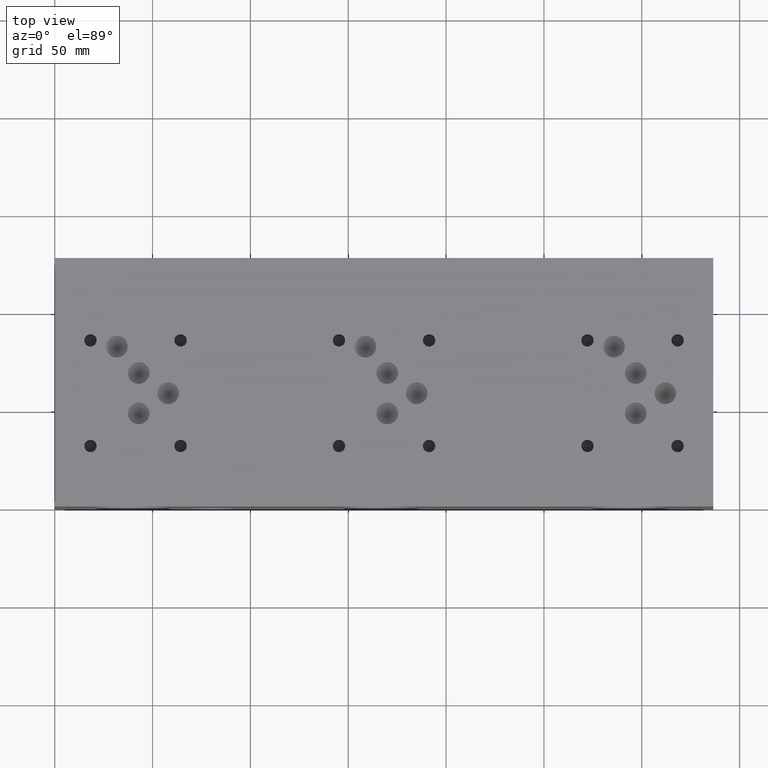
[diagram: clean part render]
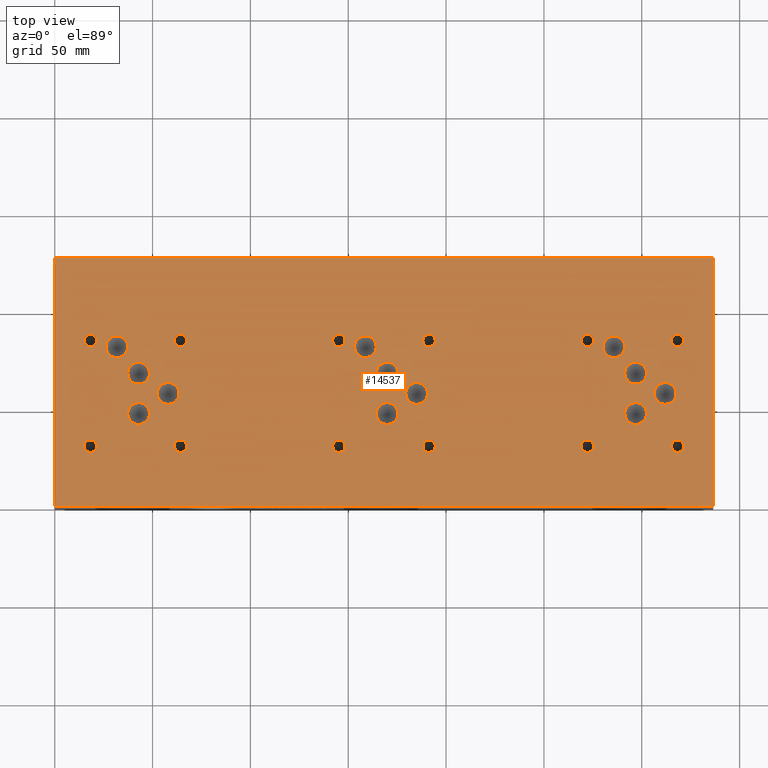
[diagram: same view with one face highlighted and labeled with its STEP entity id]
A machine part, top view. The second image highlights one B-rep face of the part: STEP entity #14537.
In plain terms, the highlighted planar face has unit normal (0, 0, 1).
Its self-contained STEP definition (entity closure, byte-faithful):
#609=CIRCLE('',#15291,5.55625);
#610=CIRCLE('',#15292,5.55625);
#613=CIRCLE('',#15297,5.55625);
#614=CIRCLE('',#15298,5.55625);
#617=CIRCLE('',#15303,5.5626);
#618=CIRCLE('',#15304,5.5626);
#621=CIRCLE('',#15309,5.5626);
#622=CIRCLE('',#15310,5.5626);
#625=CIRCLE('',#15315,5.5626);
#626=CIRCLE('',#15316,5.5626);
#629=CIRCLE('',#15321,5.5626);
#630=CIRCLE('',#15322,5.5626);
#633=CIRCLE('',#15327,5.5626);
#634=CIRCLE('',#15328,5.5626);
#637=CIRCLE('',#15333,5.5626);
#638=CIRCLE('',#15334,5.5626);
#641=CIRCLE('',#15339,5.5626);
#642=CIRCLE('',#15340,5.5626);
#645=CIRCLE('',#15345,5.5626);
#646=CIRCLE('',#15346,5.5626);
#649=CIRCLE('',#15351,5.5626);
#650=CIRCLE('',#15352,5.5626);
#653=CIRCLE('',#15357,5.5626);
#654=CIRCLE('',#15358,5.5626);
#660=CIRCLE('',#15367,3.175);
#661=CIRCLE('',#15368,3.175);
#667=CIRCLE('',#15378,3.175);
#668=CIRCLE('',#15379,3.175);
#674=CIRCLE('',#15389,3.175);
#675=CIRCLE('',#15390,3.175);
#681=CIRCLE('',#15400,3.175);
#682=CIRCLE('',#15401,3.175);
#688=CIRCLE('',#15411,3.175);
#689=CIRCLE('',#15412,3.175);
#695=CIRCLE('',#15422,3.175);
#696=CIRCLE('',#15423,3.175);
#702=CIRCLE('',#15433,3.175);
#703=CIRCLE('',#15434,3.175);
#709=CIRCLE('',#15444,3.175);
#710=CIRCLE('',#15445,3.175);
#716=CIRCLE('',#15455,3.175);
#717=CIRCLE('',#15456,3.175);
#723=CIRCLE('',#15466,3.175);
#724=CIRCLE('',#15467,3.175);
#730=CIRCLE('',#15477,3.175);
#731=CIRCLE('',#15478,3.175);
#737=CIRCLE('',#15488,3.175);
#738=CIRCLE('',#15489,3.175);
#1204=FACE_BOUND('',#2834,.T.);
#1205=FACE_BOUND('',#2835,.T.);
#1206=FACE_BOUND('',#2836,.T.);
#1207=FACE_BOUND('',#2837,.T.);
#1208=FACE_BOUND('',#2838,.T.);
#1209=FACE_BOUND('',#2839,.T.);
#1210=FACE_BOUND('',#2840,.T.);
#1211=FACE_BOUND('',#2841,.T.);
#1212=FACE_BOUND('',#2842,.T.);
#1213=FACE_BOUND('',#2843,.T.);
#1214=FACE_BOUND('',#2844,.T.);
#1215=FACE_BOUND('',#2845,.T.);
#1216=FACE_BOUND('',#2846,.T.);
#1217=FACE_BOUND('',#2847,.T.);
#1218=FACE_BOUND('',#2848,.T.);
#1219=FACE_BOUND('',#2849,.T.);
#1220=FACE_BOUND('',#2850,.T.);
#1221=FACE_BOUND('',#2851,.T.);
#1222=FACE_BOUND('',#2852,.T.);
#1223=FACE_BOUND('',#2853,.T.);
#1224=FACE_BOUND('',#2854,.T.);
#1225=FACE_BOUND('',#2855,.T.);
#1226=FACE_BOUND('',#2856,.T.);
#1227=FACE_BOUND('',#2857,.T.);
#1978=FACE_OUTER_BOUND('',#2833,.T.);
#2833=EDGE_LOOP('',(#12812,#12813,#12814,#12815));
#2834=EDGE_LOOP('',(#12816,#12817));
#2835=EDGE_LOOP('',(#12818,#12819));
#2836=EDGE_LOOP('',(#12820,#12821));
#2837=EDGE_LOOP('',(#12822,#12823));
#2838=EDGE_LOOP('',(#12824,#12825));
#2839=EDGE_LOOP('',(#12826,#12827));
#2840=EDGE_LOOP('',(#12828,#12829));
#2841=EDGE_LOOP('',(#12830,#12831));
#2842=EDGE_LOOP('',(#12832,#12833));
#2843=EDGE_LOOP('',(#12834,#12835));
#2844=EDGE_LOOP('',(#12836,#12837));
#2845=EDGE_LOOP('',(#12838,#12839));
#2846=EDGE_LOOP('',(#12840,#12841));
#2847=EDGE_LOOP('',(#12842,#12843));
#2848=EDGE_LOOP('',(#12844,#12845));
#2849=EDGE_LOOP('',(#12846,#12847));
#2850=EDGE_LOOP('',(#12848,#12849));
#2851=EDGE_LOOP('',(#12850,#12851));
#2852=EDGE_LOOP('',(#12852,#12853));
#2853=EDGE_LOOP('',(#12854,#12855));
#2854=EDGE_LOOP('',(#12856,#12857));
#2855=EDGE_LOOP('',(#12858,#12859));
#2856=EDGE_LOOP('',(#12860,#12861));
#2857=EDGE_LOOP('',(#12862,#12863));
#2894=LINE('',#18744,#4176);
#3191=LINE('',#20278,#4473);
#3233=LINE('',#20516,#4515);
#4140=LINE('',#25181,#5422);
#4176=VECTOR('',#15560,10.);
#4473=VECTOR('',#15931,10.);
#4515=VECTOR('',#16009,10.);
#5422=VECTOR('',#18660,10.);
#5447=VERTEX_POINT('',#18741);
#5448=VERTEX_POINT('',#18743);
#5868=VERTEX_POINT('',#20276);
#5918=VERTEX_POINT('',#20515);
#6664=VERTEX_POINT('',#24766);
#6665=VERTEX_POINT('',#24767);
#6669=VERTEX_POINT('',#24779);
#6670=VERTEX_POINT('',#24780);
#6674=VERTEX_POINT('',#24792);
#6675=VERTEX_POINT('',#24793);
#6679=VERTEX_POINT('',#24805);
#6680=VERTEX_POINT('',#24806);
#6684=VERTEX_POINT('',#24818);
#6685=VERTEX_POINT('',#24819);
#6689=VERTEX_POINT('',#24831);
#6690=VERTEX_POINT('',#24832);
#6694=VERTEX_POINT('',#24844);
#6695=VERTEX_POINT('',#24845);
#6699=VERTEX_POINT('',#24857);
#6700=VERTEX_POINT('',#24858);
#6704=VERTEX_POINT('',#24870);
#6705=VERTEX_POINT('',#24871);
#6709=VERTEX_POINT('',#24883);
#6710=VERTEX_POINT('',#24884);
#6714=VERTEX_POINT('',#24896);
#6715=VERTEX_POINT('',#24897);
#6719=VERTEX_POINT('',#24909);
#6720=VERTEX_POINT('',#24910);
#6727=VERTEX_POINT('',#24929);
#6728=VERTEX_POINT('',#24930);
#6735=VERTEX_POINT('',#24951);
#6736=VERTEX_POINT('',#24952);
#6743=VERTEX_POINT('',#24973);
#6744=VERTEX_POINT('',#24974);
#6751=VERTEX_POINT('',#24995);
#6752=VERTEX_POINT('',#24996);
#6759=VERTEX_POINT('',#25017);
#6760=VERTEX_POINT('',#25018);
#6767=VERTEX_POINT('',#25039);
#6768=VERTEX_POINT('',#25040);
#6775=VERTEX_POINT('',#25061);
#6776=VERTEX_POINT('',#25062);
#6783=VERTEX_POINT('',#25083);
#6784=VERTEX_POINT('',#25084);
#6791=VERTEX_POINT('',#25105);
#6792=VERTEX_POINT('',#25106);
#6799=VERTEX_POINT('',#25127);
#6800=VERTEX_POINT('',#25128);
#6807=VERTEX_POINT('',#25149);
#6808=VERTEX_POINT('',#25150);
#6815=VERTEX_POINT('',#25171);
#6816=VERTEX_POINT('',#25172);
#6852=EDGE_CURVE('',#5448,#5447,#2894,.T.);
#7314=EDGE_CURVE('',#5447,#5868,#3191,.T.);
#7380=EDGE_CURVE('',#5918,#5448,#3233,.T.);
#8643=EDGE_CURVE('',#6664,#6665,#609,.T.);
#8644=EDGE_CURVE('',#6665,#6664,#610,.T.);
#8649=EDGE_CURVE('',#6669,#6670,#613,.T.);
#8650=EDGE_CURVE('',#6670,#6669,#614,.T.);
#8655=EDGE_CURVE('',#6674,#6675,#617,.T.);
#8656=EDGE_CURVE('',#6675,#6674,#618,.T.);
#8661=EDGE_CURVE('',#6679,#6680,#621,.T.);
#8662=EDGE_CURVE('',#6680,#6679,#622,.T.);
#8667=EDGE_CURVE('',#6684,#6685,#625,.T.);
#8668=EDGE_CURVE('',#6685,#6684,#626,.T.);
#8673=EDGE_CURVE('',#6689,#6690,#629,.T.);
#8674=EDGE_CURVE('',#6690,#6689,#630,.T.);
#8679=EDGE_CURVE('',#6694,#6695,#633,.T.);
#8680=EDGE_CURVE('',#6695,#6694,#634,.T.);
#8685=EDGE_CURVE('',#6699,#6700,#637,.T.);
#8686=EDGE_CURVE('',#6700,#6699,#638,.T.);
#8691=EDGE_CURVE('',#6704,#6705,#641,.T.);
#8692=EDGE_CURVE('',#6705,#6704,#642,.T.);
#8697=EDGE_CURVE('',#6709,#6710,#645,.T.);
#8698=EDGE_CURVE('',#6710,#6709,#646,.T.);
#8703=EDGE_CURVE('',#6714,#6715,#649,.T.);
#8704=EDGE_CURVE('',#6715,#6714,#650,.T.);
#8709=EDGE_CURVE('',#6719,#6720,#653,.T.);
#8710=EDGE_CURVE('',#6720,#6719,#654,.T.);
#8718=EDGE_CURVE('',#6727,#6728,#660,.T.);
#8719=EDGE_CURVE('',#6728,#6727,#661,.T.);
#8728=EDGE_CURVE('',#6735,#6736,#667,.T.);
#8729=EDGE_CURVE('',#6736,#6735,#668,.T.);
#8738=EDGE_CURVE('',#6743,#6744,#674,.T.);
#8739=EDGE_CURVE('',#6744,#6743,#675,.T.);
#8748=EDGE_CURVE('',#6751,#6752,#681,.T.);
#8749=EDGE_CURVE('',#6752,#6751,#682,.T.);
#8758=EDGE_CURVE('',#6759,#6760,#688,.T.);
#8759=EDGE_CURVE('',#6760,#6759,#689,.T.);
#8768=EDGE_CURVE('',#6767,#6768,#695,.T.);
#8769=EDGE_CURVE('',#6768,#6767,#696,.T.);
#8778=EDGE_CURVE('',#6775,#6776,#702,.T.);
#8779=EDGE_CURVE('',#6776,#6775,#703,.T.);
#8788=EDGE_CURVE('',#6783,#6784,#709,.T.);
#8789=EDGE_CURVE('',#6784,#6783,#710,.T.);
#8798=EDGE_CURVE('',#6791,#6792,#716,.T.);
#8799=EDGE_CURVE('',#6792,#6791,#717,.T.);
#8808=EDGE_CURVE('',#6799,#6800,#723,.T.);
#8809=EDGE_CURVE('',#6800,#6799,#724,.T.);
#8818=EDGE_CURVE('',#6807,#6808,#730,.T.);
#8819=EDGE_CURVE('',#6808,#6807,#731,.T.);
#8828=EDGE_CURVE('',#6815,#6816,#737,.T.);
#8829=EDGE_CURVE('',#6816,#6815,#738,.T.);
#8833=EDGE_CURVE('',#5868,#5918,#4140,.T.);
#12812=ORIENTED_EDGE('',*,*,#6852,.T.);
#12813=ORIENTED_EDGE('',*,*,#7314,.T.);
#12814=ORIENTED_EDGE('',*,*,#8833,.T.);
#12815=ORIENTED_EDGE('',*,*,#7380,.T.);
#12816=ORIENTED_EDGE('',*,*,#8643,.T.);
#12817=ORIENTED_EDGE('',*,*,#8644,.T.);
#12818=ORIENTED_EDGE('',*,*,#8649,.T.);
#12819=ORIENTED_EDGE('',*,*,#8650,.T.);
#12820=ORIENTED_EDGE('',*,*,#8655,.T.);
#12821=ORIENTED_EDGE('',*,*,#8656,.T.);
#12822=ORIENTED_EDGE('',*,*,#8661,.T.);
#12823=ORIENTED_EDGE('',*,*,#8662,.T.);
#12824=ORIENTED_EDGE('',*,*,#8667,.T.);
#12825=ORIENTED_EDGE('',*,*,#8668,.T.);
#12826=ORIENTED_EDGE('',*,*,#8673,.T.);
#12827=ORIENTED_EDGE('',*,*,#8674,.T.);
#12828=ORIENTED_EDGE('',*,*,#8679,.T.);
#12829=ORIENTED_EDGE('',*,*,#8680,.T.);
#12830=ORIENTED_EDGE('',*,*,#8685,.T.);
#12831=ORIENTED_EDGE('',*,*,#8686,.T.);
#12832=ORIENTED_EDGE('',*,*,#8691,.T.);
#12833=ORIENTED_EDGE('',*,*,#8692,.T.);
#12834=ORIENTED_EDGE('',*,*,#8697,.T.);
#12835=ORIENTED_EDGE('',*,*,#8698,.T.);
#12836=ORIENTED_EDGE('',*,*,#8703,.T.);
#12837=ORIENTED_EDGE('',*,*,#8704,.T.);
#12838=ORIENTED_EDGE('',*,*,#8709,.T.);
#12839=ORIENTED_EDGE('',*,*,#8710,.T.);
#12840=ORIENTED_EDGE('',*,*,#8718,.T.);
#12841=ORIENTED_EDGE('',*,*,#8719,.T.);
#12842=ORIENTED_EDGE('',*,*,#8728,.T.);
#12843=ORIENTED_EDGE('',*,*,#8729,.T.);
#12844=ORIENTED_EDGE('',*,*,#8738,.T.);
#12845=ORIENTED_EDGE('',*,*,#8739,.T.);
#12846=ORIENTED_EDGE('',*,*,#8748,.T.);
#12847=ORIENTED_EDGE('',*,*,#8749,.T.);
#12848=ORIENTED_EDGE('',*,*,#8758,.T.);
#12849=ORIENTED_EDGE('',*,*,#8759,.T.);
#12850=ORIENTED_EDGE('',*,*,#8768,.T.);
#12851=ORIENTED_EDGE('',*,*,#8769,.T.);
#12852=ORIENTED_EDGE('',*,*,#8778,.T.);
#12853=ORIENTED_EDGE('',*,*,#8779,.T.);
#12854=ORIENTED_EDGE('',*,*,#8788,.T.);
#12855=ORIENTED_EDGE('',*,*,#8789,.T.);
#12856=ORIENTED_EDGE('',*,*,#8798,.T.);
#12857=ORIENTED_EDGE('',*,*,#8799,.T.);
#12858=ORIENTED_EDGE('',*,*,#8808,.T.);
#12859=ORIENTED_EDGE('',*,*,#8809,.T.);
#12860=ORIENTED_EDGE('',*,*,#8818,.T.);
#12861=ORIENTED_EDGE('',*,*,#8819,.T.);
#12862=ORIENTED_EDGE('',*,*,#8828,.T.);
#12863=ORIENTED_EDGE('',*,*,#8829,.T.);
#13266=PLANE('',#15495);
#14537=ADVANCED_FACE('',(#1978,#1204,#1205,#1206,#1207,#1208,#1209,#1210,
#1211,#1212,#1213,#1214,#1215,#1216,#1217,#1218,#1219,#1220,#1221,#1222,
#1223,#1224,#1225,#1226,#1227),#13266,.T.);
#15291=AXIS2_PLACEMENT_3D('',#24768,#18196,#18197);
#15292=AXIS2_PLACEMENT_3D('',#24769,#18198,#18199);
#15297=AXIS2_PLACEMENT_3D('',#24781,#18210,#18211);
#15298=AXIS2_PLACEMENT_3D('',#24782,#18212,#18213);
#15303=AXIS2_PLACEMENT_3D('',#24794,#18224,#18225);
#15304=AXIS2_PLACEMENT_3D('',#24795,#18226,#18227);
#15309=AXIS2_PLACEMENT_3D('',#24807,#18238,#18239);
#15310=AXIS2_PLACEMENT_3D('',#24808,#18240,#18241);
#15315=AXIS2_PLACEMENT_3D('',#24820,#18252,#18253);
#15316=AXIS2_PLACEMENT_3D('',#24821,#18254,#18255);
#15321=AXIS2_PLACEMENT_3D('',#24833,#18266,#18267);
#15322=AXIS2_PLACEMENT_3D('',#24834,#18268,#18269);
#15327=AXIS2_PLACEMENT_3D('',#24846,#18280,#18281);
#15328=AXIS2_PLACEMENT_3D('',#24847,#18282,#18283);
#15333=AXIS2_PLACEMENT_3D('',#24859,#18294,#18295);
#15334=AXIS2_PLACEMENT_3D('',#24860,#18296,#18297);
#15339=AXIS2_PLACEMENT_3D('',#24872,#18308,#18309);
#15340=AXIS2_PLACEMENT_3D('',#24873,#18310,#18311);
#15345=AXIS2_PLACEMENT_3D('',#24885,#18322,#18323);
#15346=AXIS2_PLACEMENT_3D('',#24886,#18324,#18325);
#15351=AXIS2_PLACEMENT_3D('',#24898,#18336,#18337);
#15352=AXIS2_PLACEMENT_3D('',#24899,#18338,#18339);
#15357=AXIS2_PLACEMENT_3D('',#24911,#18350,#18351);
#15358=AXIS2_PLACEMENT_3D('',#24912,#18352,#18353);
#15367=AXIS2_PLACEMENT_3D('',#24931,#18372,#18373);
#15368=AXIS2_PLACEMENT_3D('',#24932,#18374,#18375);
#15378=AXIS2_PLACEMENT_3D('',#24953,#18397,#18398);
#15379=AXIS2_PLACEMENT_3D('',#24954,#18399,#18400);
#15389=AXIS2_PLACEMENT_3D('',#24975,#18422,#18423);
#15390=AXIS2_PLACEMENT_3D('',#24976,#18424,#18425);
#15400=AXIS2_PLACEMENT_3D('',#24997,#18447,#18448);
#15401=AXIS2_PLACEMENT_3D('',#24998,#18449,#18450);
#15411=AXIS2_PLACEMENT_3D('',#25019,#18472,#18473);
#15412=AXIS2_PLACEMENT_3D('',#25020,#18474,#18475);
#15422=AXIS2_PLACEMENT_3D('',#25041,#18497,#18498);
#15423=AXIS2_PLACEMENT_3D('',#25042,#18499,#18500);
#15433=AXIS2_PLACEMENT_3D('',#25063,#18522,#18523);
#15434=AXIS2_PLACEMENT_3D('',#25064,#18524,#18525);
#15444=AXIS2_PLACEMENT_3D('',#25085,#18547,#18548);
#15445=AXIS2_PLACEMENT_3D('',#25086,#18549,#18550);
#15455=AXIS2_PLACEMENT_3D('',#25107,#18572,#18573);
#15456=AXIS2_PLACEMENT_3D('',#25108,#18574,#18575);
#15466=AXIS2_PLACEMENT_3D('',#25129,#18597,#18598);
#15467=AXIS2_PLACEMENT_3D('',#25130,#18599,#18600);
#15477=AXIS2_PLACEMENT_3D('',#25151,#18622,#18623);
#15478=AXIS2_PLACEMENT_3D('',#25152,#18624,#18625);
#15488=AXIS2_PLACEMENT_3D('',#25173,#18647,#18648);
#15489=AXIS2_PLACEMENT_3D('',#25174,#18649,#18650);
#15495=AXIS2_PLACEMENT_3D('',#25184,#18665,#18666);
#15560=DIRECTION('',(1.,0.,0.));
#15931=DIRECTION('',(0.,1.,0.));
#16009=DIRECTION('',(0.,-1.,0.));
#18196=DIRECTION('center_axis',(0.,0.,-1.));
#18197=DIRECTION('ref_axis',(1.,0.,0.));
#18198=DIRECTION('center_axis',(0.,0.,-1.));
#18199=DIRECTION('ref_axis',(1.,0.,0.));
#18210=DIRECTION('center_axis',(0.,0.,-1.));
#18211=DIRECTION('ref_axis',(1.,0.,0.));
#18212=DIRECTION('center_axis',(0.,0.,-1.));
#18213=DIRECTION('ref_axis',(1.,0.,0.));
#18224=DIRECTION('center_axis',(0.,0.,-1.));
#18225=DIRECTION('ref_axis',(1.,0.,0.));
#18226=DIRECTION('center_axis',(0.,0.,-1.));
#18227=DIRECTION('ref_axis',(1.,0.,0.));
#18238=DIRECTION('center_axis',(0.,0.,-1.));
#18239=DIRECTION('ref_axis',(1.,0.,0.));
#18240=DIRECTION('center_axis',(0.,0.,-1.));
#18241=DIRECTION('ref_axis',(1.,0.,0.));
#18252=DIRECTION('center_axis',(0.,0.,-1.));
#18253=DIRECTION('ref_axis',(1.,0.,0.));
#18254=DIRECTION('center_axis',(0.,0.,-1.));
#18255=DIRECTION('ref_axis',(1.,0.,0.));
#18266=DIRECTION('center_axis',(0.,0.,-1.));
#18267=DIRECTION('ref_axis',(1.,0.,0.));
#18268=DIRECTION('center_axis',(0.,0.,-1.));
#18269=DIRECTION('ref_axis',(1.,0.,0.));
#18280=DIRECTION('center_axis',(0.,0.,-1.));
#18281=DIRECTION('ref_axis',(1.,0.,0.));
#18282=DIRECTION('center_axis',(0.,0.,-1.));
#18283=DIRECTION('ref_axis',(1.,0.,0.));
#18294=DIRECTION('center_axis',(0.,0.,-1.));
#18295=DIRECTION('ref_axis',(1.,0.,0.));
#18296=DIRECTION('center_axis',(0.,0.,-1.));
#18297=DIRECTION('ref_axis',(1.,0.,0.));
#18308=DIRECTION('center_axis',(0.,0.,-1.));
#18309=DIRECTION('ref_axis',(1.,0.,0.));
#18310=DIRECTION('center_axis',(0.,0.,-1.));
#18311=DIRECTION('ref_axis',(1.,0.,0.));
#18322=DIRECTION('center_axis',(0.,0.,-1.));
#18323=DIRECTION('ref_axis',(1.,0.,0.));
#18324=DIRECTION('center_axis',(0.,0.,-1.));
#18325=DIRECTION('ref_axis',(1.,0.,0.));
#18336=DIRECTION('center_axis',(0.,0.,-1.));
#18337=DIRECTION('ref_axis',(1.,0.,0.));
#18338=DIRECTION('center_axis',(0.,0.,-1.));
#18339=DIRECTION('ref_axis',(1.,0.,0.));
#18350=DIRECTION('center_axis',(0.,0.,-1.));
#18351=DIRECTION('ref_axis',(1.,0.,0.));
#18352=DIRECTION('center_axis',(0.,0.,-1.));
#18353=DIRECTION('ref_axis',(1.,0.,0.));
#18372=DIRECTION('center_axis',(0.,0.,-1.));
#18373=DIRECTION('ref_axis',(1.,0.,0.));
#18374=DIRECTION('center_axis',(0.,0.,-1.));
#18375=DIRECTION('ref_axis',(1.,0.,0.));
#18397=DIRECTION('center_axis',(0.,0.,-1.));
#18398=DIRECTION('ref_axis',(1.,0.,0.));
#18399=DIRECTION('center_axis',(0.,0.,-1.));
#18400=DIRECTION('ref_axis',(1.,0.,0.));
#18422=DIRECTION('center_axis',(0.,0.,-1.));
#18423=DIRECTION('ref_axis',(1.,0.,0.));
#18424=DIRECTION('center_axis',(0.,0.,-1.));
#18425=DIRECTION('ref_axis',(1.,0.,0.));
#18447=DIRECTION('center_axis',(0.,0.,-1.));
#18448=DIRECTION('ref_axis',(1.,0.,0.));
#18449=DIRECTION('center_axis',(0.,0.,-1.));
#18450=DIRECTION('ref_axis',(1.,0.,0.));
#18472=DIRECTION('center_axis',(0.,0.,-1.));
#18473=DIRECTION('ref_axis',(1.,0.,0.));
#18474=DIRECTION('center_axis',(0.,0.,-1.));
#18475=DIRECTION('ref_axis',(1.,0.,0.));
#18497=DIRECTION('center_axis',(0.,0.,-1.));
#18498=DIRECTION('ref_axis',(1.,0.,0.));
#18499=DIRECTION('center_axis',(0.,0.,-1.));
#18500=DIRECTION('ref_axis',(1.,0.,0.));
#18522=DIRECTION('center_axis',(0.,0.,-1.));
#18523=DIRECTION('ref_axis',(1.,0.,0.));
#18524=DIRECTION('center_axis',(0.,0.,-1.));
#18525=DIRECTION('ref_axis',(1.,0.,0.));
#18547=DIRECTION('center_axis',(0.,0.,-1.));
#18548=DIRECTION('ref_axis',(1.,0.,0.));
#18549=DIRECTION('center_axis',(0.,0.,-1.));
#18550=DIRECTION('ref_axis',(1.,0.,0.));
#18572=DIRECTION('center_axis',(0.,0.,-1.));
#18573=DIRECTION('ref_axis',(1.,0.,0.));
#18574=DIRECTION('center_axis',(0.,0.,-1.));
#18575=DIRECTION('ref_axis',(1.,0.,0.));
#18597=DIRECTION('center_axis',(0.,0.,-1.));
#18598=DIRECTION('ref_axis',(1.,0.,0.));
#18599=DIRECTION('center_axis',(0.,0.,-1.));
#18600=DIRECTION('ref_axis',(1.,0.,0.));
#18622=DIRECTION('center_axis',(0.,0.,-1.));
#18623=DIRECTION('ref_axis',(1.,0.,0.));
#18624=DIRECTION('center_axis',(0.,0.,-1.));
#18625=DIRECTION('ref_axis',(1.,0.,0.));
#18647=DIRECTION('center_axis',(0.,0.,-1.));
#18648=DIRECTION('ref_axis',(1.,0.,0.));
#18649=DIRECTION('center_axis',(0.,0.,-1.));
#18650=DIRECTION('ref_axis',(1.,0.,0.));
#18660=DIRECTION('',(-1.,0.,0.));
#18665=DIRECTION('center_axis',(0.,0.,1.));
#18666=DIRECTION('ref_axis',(1.,0.,0.));
#18741=CARTESIAN_POINT('',(336.55,0.,101.6));
#18743=CARTESIAN_POINT('',(0.,0.,101.6));
#18744=CARTESIAN_POINT('',(0.,0.,101.6));
#20276=CARTESIAN_POINT('',(336.55,127.,101.6));
#20278=CARTESIAN_POINT('',(336.55,0.,101.6));
#20515=CARTESIAN_POINT('',(0.,127.,101.6));
#20516=CARTESIAN_POINT('',(0.,127.,101.6));
#24766=CARTESIAN_POINT('',(48.41875,68.15328,101.6));
#24767=CARTESIAN_POINT('',(37.30625,68.15328,101.6));
#24768=CARTESIAN_POINT('Origin',(42.8625,68.15328,101.6));
#24769=CARTESIAN_POINT('Origin',(42.8625,68.15328,101.6));
#24779=CARTESIAN_POINT('',(48.42383,47.51832,101.6));
#24780=CARTESIAN_POINT('',(37.31133,47.51832,101.6));
#24781=CARTESIAN_POINT('Origin',(42.86758,47.51832,101.6));
#24782=CARTESIAN_POINT('Origin',(42.86758,47.51832,101.6));
#24792=CARTESIAN_POINT('',(302.4378,68.1482,101.6));
#24793=CARTESIAN_POINT('',(291.3126,68.1482,101.6));
#24794=CARTESIAN_POINT('Origin',(296.8752,68.1482,101.6));
#24795=CARTESIAN_POINT('Origin',(296.8752,68.1482,101.6));
#24805=CARTESIAN_POINT('',(317.5254,57.8358,101.6));
#24806=CARTESIAN_POINT('',(306.4002,57.8358,101.6));
#24807=CARTESIAN_POINT('Origin',(311.9628,57.8358,101.6));
#24808=CARTESIAN_POINT('Origin',(311.9628,57.8358,101.6));
#24818=CARTESIAN_POINT('',(175.4378,68.1482,101.6));
#24819=CARTESIAN_POINT('',(164.3126,68.1482,101.6));
#24820=CARTESIAN_POINT('Origin',(169.8752,68.1482,101.6));
#24821=CARTESIAN_POINT('Origin',(169.8752,68.1482,101.6));
#24831=CARTESIAN_POINT('',(190.5254,57.8358,101.6));
#24832=CARTESIAN_POINT('',(179.4002,57.8358,101.6));
#24833=CARTESIAN_POINT('Origin',(184.9628,57.8358,101.6));
#24834=CARTESIAN_POINT('Origin',(184.9628,57.8358,101.6));
#24844=CARTESIAN_POINT('',(63.5254,57.8358,101.6));
#24845=CARTESIAN_POINT('',(52.4002,57.8358,101.6));
#24846=CARTESIAN_POINT('Origin',(57.9628,57.8358,101.6));
#24847=CARTESIAN_POINT('Origin',(57.9628,57.8358,101.6));
#24857=CARTESIAN_POINT('',(37.3126,81.661,101.6));
#24858=CARTESIAN_POINT('',(26.1874,81.661,101.6));
#24859=CARTESIAN_POINT('Origin',(31.75,81.661,101.6));
#24860=CARTESIAN_POINT('Origin',(31.75,81.661,101.6));
#24870=CARTESIAN_POINT('',(164.3126,81.661,101.6));
#24871=CARTESIAN_POINT('',(153.1874,81.661,101.6));
#24872=CARTESIAN_POINT('Origin',(158.75,81.661,101.6));
#24873=CARTESIAN_POINT('Origin',(158.75,81.661,101.6));
#24883=CARTESIAN_POINT('',(175.4378,47.5234,101.6));
#24884=CARTESIAN_POINT('',(164.3126,47.5234,101.6));
#24885=CARTESIAN_POINT('Origin',(169.8752,47.5234,101.6));
#24886=CARTESIAN_POINT('Origin',(169.8752,47.5234,101.6));
#24896=CARTESIAN_POINT('',(291.3126,81.661,101.6));
#24897=CARTESIAN_POINT('',(280.1874,81.661,101.6));
#24898=CARTESIAN_POINT('Origin',(285.75,81.661,101.6));
#24899=CARTESIAN_POINT('Origin',(285.75,81.661,101.6));
#24909=CARTESIAN_POINT('',(302.4378,47.5234,101.6));
#24910=CARTESIAN_POINT('',(291.3126,47.5234,101.6));
#24911=CARTESIAN_POINT('Origin',(296.8752,47.5234,101.6));
#24912=CARTESIAN_POINT('Origin',(296.8752,47.5234,101.6));
#24929=CARTESIAN_POINT('',(321.4624,30.861,101.6));
#24930=CARTESIAN_POINT('',(315.1124,30.861,101.6));
#24931=CARTESIAN_POINT('Origin',(318.2874,30.861,101.6));
#24932=CARTESIAN_POINT('Origin',(318.2874,30.861,101.6));
#24951=CARTESIAN_POINT('',(275.4122,84.836,101.6));
#24952=CARTESIAN_POINT('',(269.0622,84.836,101.6));
#24953=CARTESIAN_POINT('Origin',(272.2372,84.836,101.6));
#24954=CARTESIAN_POINT('Origin',(272.2372,84.836,101.6));
#24973=CARTESIAN_POINT('',(194.4624,30.861,101.6));
#24974=CARTESIAN_POINT('',(188.1124,30.861,101.6));
#24975=CARTESIAN_POINT('Origin',(191.2874,30.861,101.6));
#24976=CARTESIAN_POINT('Origin',(191.2874,30.861,101.6));
#24995=CARTESIAN_POINT('',(148.4122,84.836,101.6));
#24996=CARTESIAN_POINT('',(142.0622,84.836,101.6));
#24997=CARTESIAN_POINT('Origin',(145.2372,84.836,101.6));
#24998=CARTESIAN_POINT('Origin',(145.2372,84.836,101.6));
#25017=CARTESIAN_POINT('',(67.4624,30.8737,101.6));
#25018=CARTESIAN_POINT('',(61.1124,30.8737,101.6));
#25019=CARTESIAN_POINT('Origin',(64.2874,30.8737,101.6));
#25020=CARTESIAN_POINT('Origin',(64.2874,30.8737,101.6));
#25039=CARTESIAN_POINT('',(21.4122,84.836,101.6));
#25040=CARTESIAN_POINT('',(15.0622,84.836,101.6));
#25041=CARTESIAN_POINT('Origin',(18.2372,84.836,101.6));
#25042=CARTESIAN_POINT('Origin',(18.2372,84.836,101.6));
#25061=CARTESIAN_POINT('',(67.4624,84.836,101.6));
#25062=CARTESIAN_POINT('',(61.1124,84.836,101.6));
#25063=CARTESIAN_POINT('Origin',(64.2874,84.836,101.6));
#25064=CARTESIAN_POINT('Origin',(64.2874,84.836,101.6));
#25083=CARTESIAN_POINT('',(21.4122,30.861,101.6));
#25084=CARTESIAN_POINT('',(15.0622,30.861,101.6));
#25085=CARTESIAN_POINT('Origin',(18.2372,30.861,101.6));
#25086=CARTESIAN_POINT('Origin',(18.2372,30.861,101.6));
#25105=CARTESIAN_POINT('',(194.4624,84.836,101.6));
#25106=CARTESIAN_POINT('',(188.1124,84.836,101.6));
#25107=CARTESIAN_POINT('Origin',(191.2874,84.836,101.6));
#25108=CARTESIAN_POINT('Origin',(191.2874,84.836,101.6));
#25127=CARTESIAN_POINT('',(148.4122,30.861,101.6));
#25128=CARTESIAN_POINT('',(142.0622,30.861,101.6));
#25129=CARTESIAN_POINT('Origin',(145.2372,30.861,101.6));
#25130=CARTESIAN_POINT('Origin',(145.2372,30.861,101.6));
#25149=CARTESIAN_POINT('',(321.4624,84.836,101.6));
#25150=CARTESIAN_POINT('',(315.1124,84.836,101.6));
#25151=CARTESIAN_POINT('Origin',(318.2874,84.836,101.6));
#25152=CARTESIAN_POINT('Origin',(318.2874,84.836,101.6));
#25171=CARTESIAN_POINT('',(275.4122,30.861,101.6));
#25172=CARTESIAN_POINT('',(269.0622,30.861,101.6));
#25173=CARTESIAN_POINT('Origin',(272.2372,30.861,101.6));
#25174=CARTESIAN_POINT('Origin',(272.2372,30.861,101.6));
#25181=CARTESIAN_POINT('',(336.55,127.,101.6));
#25184=CARTESIAN_POINT('Origin',(168.275,63.5,101.6));